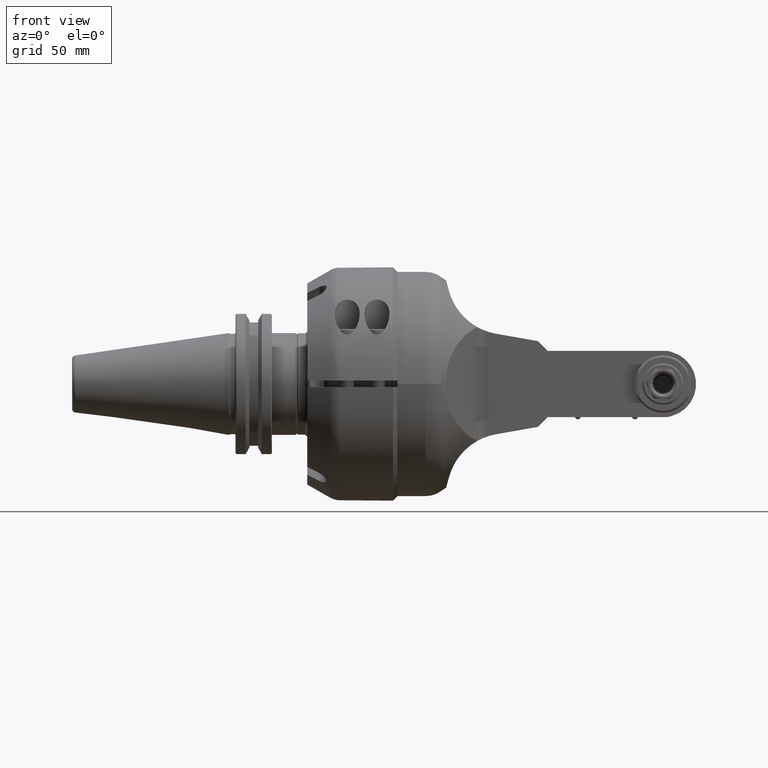
[diagram: clean part render]
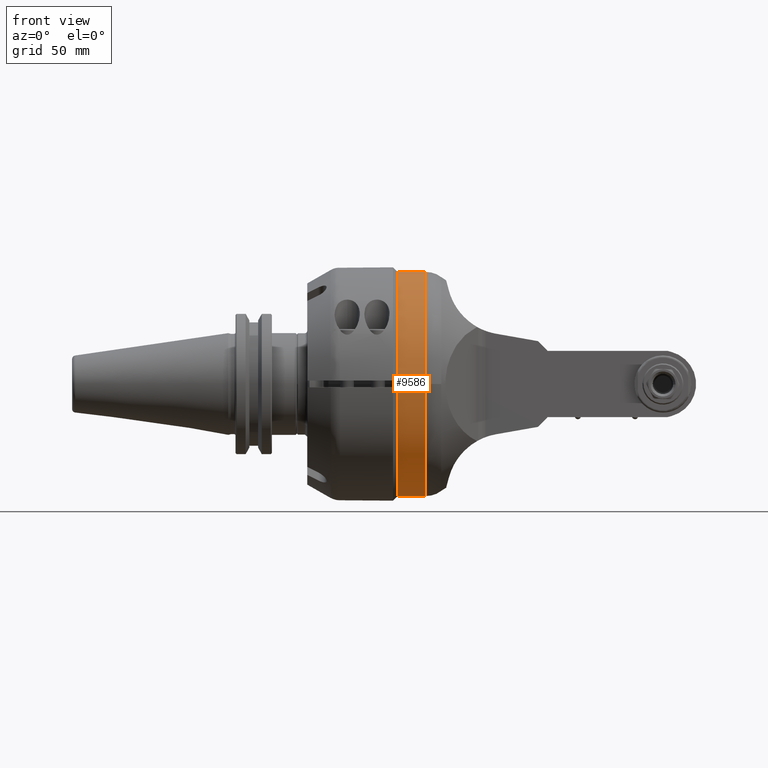
[diagram: same view with one face highlighted and labeled with its STEP entity id]
A machine part, front view. The second image highlights one B-rep face of the part: STEP entity #9586.
In plain terms, the highlighted cylindrical surface (bore or boss wall) has radius 49 mm, axis along (-1, -0, 0).
Its self-contained STEP definition (entity closure, byte-faithful):
#396=CYLINDRICAL_SURFACE('',#10199,49.);
#659=CIRCLE('',#10197,49.);
#661=CIRCLE('',#10200,49.);
#1107=FACE_OUTER_BOUND('',#1638,.T.);
#1638=EDGE_LOOP('',(#6532,#6533,#6534,#6535));
#2286=LINE('',#14166,#3096);
#3096=VECTOR('',#11286,49.);
#3921=VERTEX_POINT('',#14160);
#3922=VERTEX_POINT('',#14164);
#4992=EDGE_CURVE('',#3921,#3921,#659,.T.);
#4994=EDGE_CURVE('',#3922,#3922,#661,.T.);
#4995=EDGE_CURVE('',#3922,#3921,#2286,.T.);
#6532=ORIENTED_EDGE('',*,*,#4994,.F.);
#6533=ORIENTED_EDGE('',*,*,#4995,.T.);
#6534=ORIENTED_EDGE('',*,*,#4992,.F.);
#6535=ORIENTED_EDGE('',*,*,#4995,.F.);
#9586=ADVANCED_FACE('',(#1107),#396,.T.);
#10197=AXIS2_PLACEMENT_3D('',#14161,#11278,#11279);
#10199=AXIS2_PLACEMENT_3D('',#14163,#11282,#11283);
#10200=AXIS2_PLACEMENT_3D('',#14165,#11284,#11285);
#11278=DIRECTION('center_axis',(1.,0.,0.));
#11279=DIRECTION('ref_axis',(0.,-1.,0.));
#11282=DIRECTION('center_axis',(-1.,0.,0.));
#11283=DIRECTION('ref_axis',(0.,1.,0.));
#11284=DIRECTION('center_axis',(-1.,0.,0.));
#11285=DIRECTION('ref_axis',(0.,1.,0.));
#11286=DIRECTION('',(1.,0.,0.));
#14160=CARTESIAN_POINT('',(29.21641453345,-49.,0.));
#14161=CARTESIAN_POINT('Origin',(29.21641453345,0.,0.));
#14163=CARTESIAN_POINT('Origin',(91.60163605758,0.,0.));
#14164=CARTESIAN_POINT('',(17.,-49.,6.00076931582203E-15));
#14165=CARTESIAN_POINT('Origin',(17.,0.,0.));
#14166=CARTESIAN_POINT('',(91.60163605758,-49.,6.00076931582203E-15));